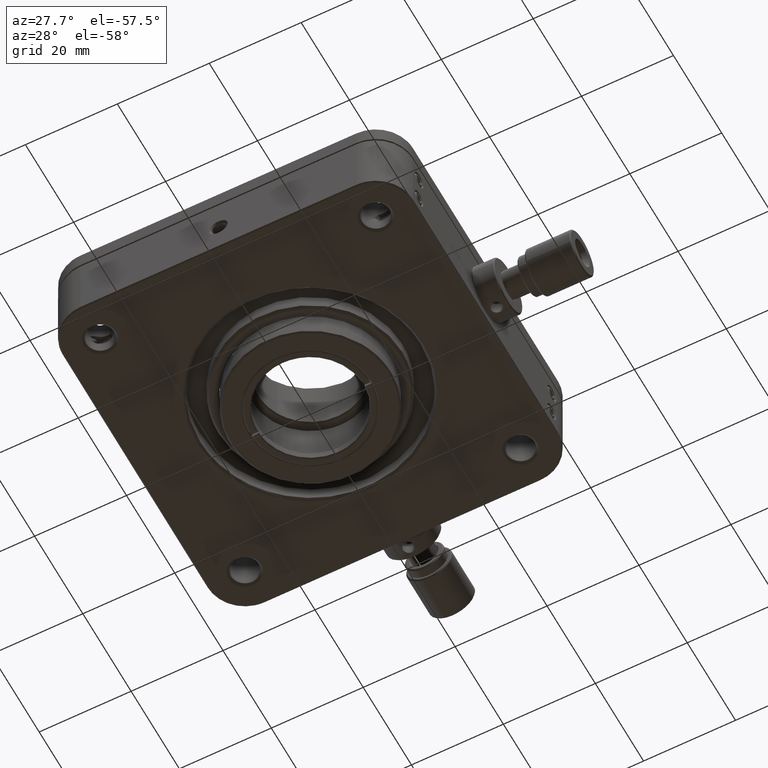
[diagram: clean part render]
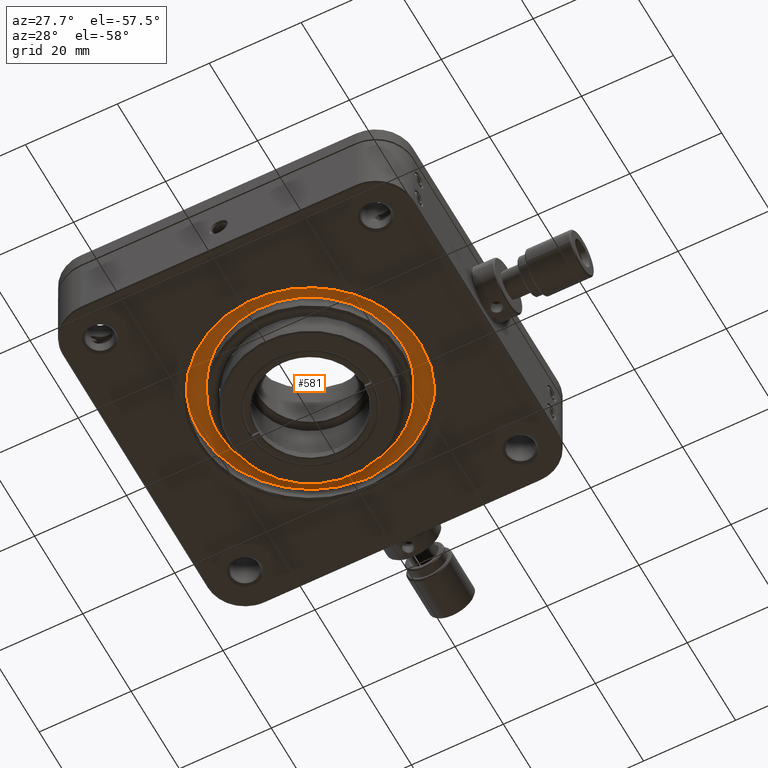
[diagram: same view with one face highlighted and labeled with its STEP entity id]
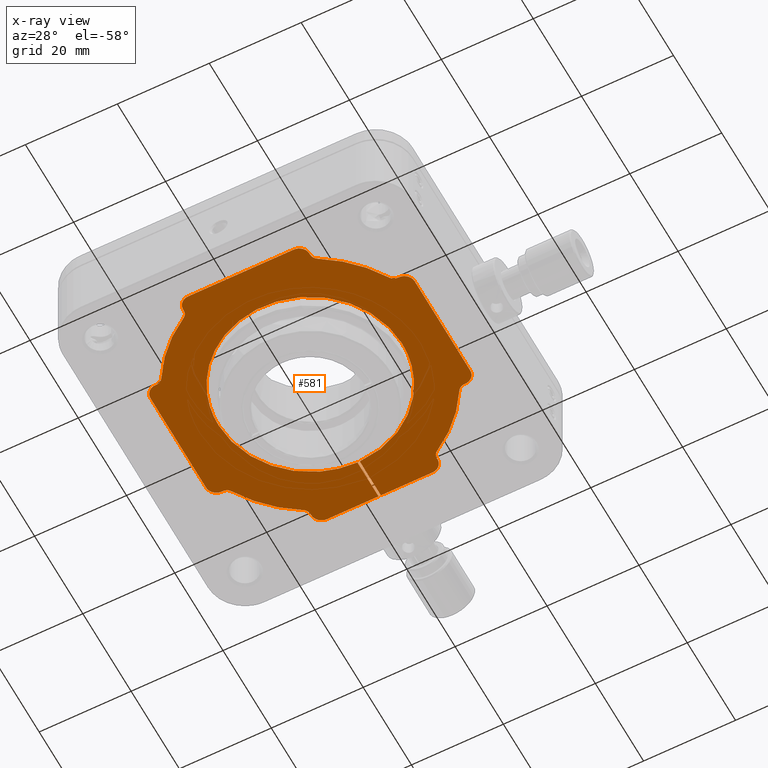
[diagram: x-ray of the same camera — body ghosted, the highlighted face saturated]
A machine part, auxiliary view. The second image highlights one B-rep face of the part: STEP entity #581.
The next image is the same camera in x-ray: the body ghosted, the highlighted face saturated — about 0% of this face is hidden behind the body in this view.
In plain terms, the highlighted face is a freeform B-spline surface patch.
Its self-contained STEP definition (entity closure, byte-faithful):
#7 = CARTESIAN_POINT ( 'NONE',  ( -28.75000000000060041, -28.75000000000060041, -4.000000000000860645 ) ) ;
#180 = ORIENTED_EDGE ( 'NONE', *, *, #21944, .T. ) ;
#194 = CARTESIAN_POINT ( 'NONE',  ( 26.49999999999955236, 13.74999999999939959, -4.000000000000849987 ) ) ;
#197 = CARTESIAN_POINT ( 'NONE',  ( -28.75000000000055422, -11.50000000000060041, -4.000000000000860645 ) ) ;
#228 = CARTESIAN_POINT ( 'NONE',  ( 28.74999999999946709, -11.79835122404499081, -4.000000000000849987 ) ) ;
#229 = CARTESIAN_POINT ( 'NONE',  ( -27.63667699514923015, 13.46454824691687691, -4.000000000000860645 ) ) ;
#243 = CARTESIAN_POINT ( 'NONE',  ( 24.76067929024245018, -14.61065573770579995, -4.000000000000849987 ) ) ;
#362 = CARTESIAN_POINT ( 'NONE',  ( -28.75000000000045119, 11.49999999999960032, -4.000000000000860645 ) ) ;
#438 = ORIENTED_EDGE ( 'NONE', *, *, #12961, .T. ) ;
#564 = CARTESIAN_POINT ( 'NONE',  ( -13.75000000000061995, -26.26785107312789691, -4.000000000000855316 ) ) ;
#581 = ADVANCED_FACE ( 'NONE', ( #24433 ), #23133, .T. ) ;
#653 = B_SPLINE_CURVE_WITH_KNOTS ( 'NONE', 1,
 ( #22613, #4243 ),
 .UNSPECIFIED., .F., .F.,
 ( 2, 2 ),
 ( 0.000000000000000000, 1.000000000000000000 ),
 .UNSPECIFIED. ) ;
#663 = VERTEX_POINT ( 'NONE', #12821 ) ;
#765 = CARTESIAN_POINT ( 'NONE',  ( -28.75000000000055422, -11.50000000000060041, -4.000000000000860645 ) ) ;
#782 = CARTESIAN_POINT ( 'NONE',  ( -14.61065573770536119, 24.76067929024245018, -4.000000000000855316 ) ) ;
#798 = CARTESIAN_POINT ( 'NONE',  ( 13.74999999999930012, -26.50000000000069988, -4.000000000000855316 ) ) ;
#845 = CARTESIAN_POINT ( 'NONE',  ( 19.99999999999949907, -6.409268245724490632E-13, -4.000000000000855316 ) ) ;
#858 = B_SPLINE_CURVE_WITH_KNOTS ( 'NONE', 3,
 ( #782, #15604, #23581, #25980, #5061, #7493 ),
 .UNSPECIFIED., .F., .F.,
 ( 4, 2, 4 ),
 ( 0.000000000000000000, 0.5000000000000000000, 1.000000000000000000 ),
 .UNSPECIFIED. ) ;
#882 = ORIENTED_EDGE ( 'NONE', *, *, #10324, .T. ) ;
#927 = CARTESIAN_POINT ( 'NONE',  ( 13.74999999999936406, -26.79835122402558056, -4.000000000000852651 ) ) ;
#1269 = EDGE_CURVE ( 'NONE', #15168, #26468, #26600, .T. ) ;
#1308 = CARTESIAN_POINT ( 'NONE',  ( 11.79838587619612689, -28.75000000000067146, -4.000000000000853539 ) ) ;
#1385 = CARTESIAN_POINT ( 'NONE',  ( -13.69289076819558204, 27.08540938439770329, -4.000000000000858869 ) ) ;
#1451 = CARTESIAN_POINT ( 'NONE',  ( -24.76067929024345204, 14.61065573770441972, -4.000000000000860645 ) ) ;
#1682 = CARTESIAN_POINT ( 'NONE',  ( -27.63666606134459869, -13.46456712803657219, -4.000000000000860645 ) ) ;
#1710 = CARTESIAN_POINT ( 'NONE',  ( -20.00000000000050093, -6.075829904497560840E-13, -4.000000000000860645 ) ) ;
#1807 = EDGE_CURVE ( 'NONE', #663, #12595, #24963, .T. ) ;
#1820 = EDGE_CURVE ( 'NONE', #15778, #17187, #3074, .T. ) ;
#1849 = CARTESIAN_POINT ( 'NONE',  ( 14.34854604577293635, -24.91534364453847061, -4.000000000000852651 ) ) ;
#1868 = CARTESIAN_POINT ( 'NONE',  ( -24.76067929024345204, -14.61065573770559922, -4.000000000000860645 ) ) ;
#1872 = CARTESIAN_POINT ( 'NONE',  ( -26.50000000000049738, -13.75000000000063949, -4.000000000000860645 ) ) ;
#1882 = CARTESIAN_POINT ( 'NONE',  ( -0.2500000000003649858, 19.99843743895939596, -3.995000000000860751 ) ) ;
#1975 = CARTESIAN_POINT ( 'NONE',  ( 21.18530712962409623, -19.47332981127734897, -4.000000000000851763 ) ) ;
#1982 = CARTESIAN_POINT ( 'NONE',  ( -15.65327483633734218, 24.14545591381145329, -4.000000000000858869 ) ) ;
#2045 = VERTEX_POINT ( 'NONE', #5502 ) ;
#2083 = CARTESIAN_POINT ( 'NONE',  ( -28.30194980099888724, -12.88004009008349371, -4.000000000000862421 ) ) ;
#2230 = CARTESIAN_POINT ( 'NONE',  ( -0.2500000000003649858, 19.99843743895939596, -3.995000000000860751 ) ) ;
#2245 = CARTESIAN_POINT ( 'NONE',  ( 26.79838587621540569, -13.75000000000094680, -4.000000000000849987 ) ) ;
#2261 = EDGE_CURVE ( 'NONE', #17187, #23928, #19464, .T. ) ;
#2346 = VERTEX_POINT ( 'NONE', #9043 ) ;
#2602 = CARTESIAN_POINT ( 'NONE',  ( 0.2499999999996395383, 19.99843743895939596, -3.995000000000860751 ) ) ;
#2811 = CARTESIAN_POINT ( 'NONE',  ( 14.34848765271527604, 24.91537810081585747, -4.000000000000852651 ) ) ;
#2902 = ORIENTED_EDGE ( 'NONE', *, *, #12081, .T. ) ;
#3050 = CARTESIAN_POINT ( 'NONE',  ( 24.14545591384855783, 15.65327483627361893, -4.000000000000851763 ) ) ;
#3074 = B_SPLINE_CURVE_WITH_KNOTS ( 'NONE', 1,
 ( #8231, #26479 ),
 .UNSPECIFIED., .F., .F.,
 ( 2, 2 ),
 ( 0.000000000000000000, 1.000000000000000000 ),
 .UNSPECIFIED. ) ;
#3083 = CARTESIAN_POINT ( 'NONE',  ( 13.69289076816966677, -27.08540938444552992, -4.000000000000852651 ) ) ;
#3145 = EDGE_CURVE ( 'NONE', #18271, #21194, #15538, .T. ) ;
#3151 = CARTESIAN_POINT ( 'NONE',  ( -12.88004009016474072, 28.30194980094611878, -4.000000000000857980 ) ) ;
#3271 = CARTESIAN_POINT ( 'NONE',  ( 26.79835122403954273, 13.74999999999946887, -4.000000000000850875 ) ) ;
#3303 = CARTESIAN_POINT ( 'NONE',  ( -13.82942682916676347, -25.66431361575172332, -4.000000000000858869 ) ) ;
#3421 = CARTESIAN_POINT ( 'NONE',  ( -12.63667699508180675, 28.46454824691663887, -4.000000000000857980 ) ) ;
#3496 = CARTESIAN_POINT ( 'NONE',  ( -25.96351153724407013, 13.74999999999951328, -4.000000000000861533 ) ) ;
#3539 = CARTESIAN_POINT ( 'NONE',  ( -26.26785107312769796, 13.74999999999959854, -4.000000000000860645 ) ) ;
#3540 = CARTESIAN_POINT ( 'NONE',  ( 11.49999999999960032, 28.74999999999934985, -4.000000000000855316 ) ) ;
#3578 = VERTEX_POINT ( 'NONE', #564 ) ;
#3589 = B_SPLINE_CURVE_WITH_KNOTS ( 'NONE', 3,
 ( #17093, #9349, #25581, #25319, #15584, #6952, #23561, #13559, #3050, #17221 ),
 .UNSPECIFIED., .F., .F.,
 ( 4, 2, 2, 2, 4 ),
 ( 0.000000000000000000, 0.2500000000000000000, 0.5000000000000000000, 0.7500000000000000000, 1.000000000000000000 ),
 .UNSPECIFIED. ) ;
#3606 = CARTESIAN_POINT ( 'NONE',  ( 19.99999999999939604, -40.00000000000066080, -4.000000000000856204 ) ) ;
#3673 = CARTESIAN_POINT ( 'NONE',  ( 13.30194980094712065, 27.88004009015004669, -4.000000000000852651 ) ) ;
#3723 = CARTESIAN_POINT ( 'NONE',  ( 25.96351153724789640, -13.75000000000094147, -4.000000000000850875 ) ) ;
#3744 = CARTESIAN_POINT ( 'NONE',  ( 14.61065573770359904, -24.76067929024414838, -4.000000000000849987 ) ) ;
#3838 = EDGE_CURVE ( 'NONE', #22388, #3578, #12605, .T. ) ;
#4010 = CARTESIAN_POINT ( 'NONE',  ( -18.56683072942890433, 21.98409991996716428, -4.000000000000858869 ) ) ;
#4045 = ORIENTED_EDGE ( 'NONE', *, *, #18301, .T. ) ;
#4098 = CARTESIAN_POINT ( 'NONE',  ( 26.26785107312669609, -13.75000000000100009, -4.000000000000849987 ) ) ;
#4132 = CARTESIAN_POINT ( 'NONE',  ( 27.63667699515278287, -13.46454824691826246, -4.000000000000849987 ) ) ;
#4227 = CARTESIAN_POINT ( 'NONE',  ( -12.63666606123501701, -28.46456712810415368, -4.000000000000857980 ) ) ;
#4243 = CARTESIAN_POINT ( 'NONE',  ( 26.26785107312669609, -13.75000000000100009, -4.000000000000849987 ) ) ;
#4315 = ORIENTED_EDGE ( 'NONE', *, *, #7223, .T. ) ;
#4452 = ORIENTED_EDGE ( 'NONE', *, *, #23238, .T. ) ;
#4529 = CARTESIAN_POINT ( 'NONE',  ( 28.74999999999944933, -11.50000000000099831, -4.000000000000849987 ) ) ;
#4669 = CARTESIAN_POINT ( 'NONE',  ( -18.56682008126790961, -21.98411349803021508, -4.000000000000857980 ) ) ;
#4943 = CARTESIAN_POINT ( 'NONE',  ( 12.08539845046990635, -28.69290964938413069, -4.000000000000854428 ) ) ;
#4973 = B_SPLINE_CURVE_WITH_KNOTS ( 'NONE', 3,
 ( #22069, #3723, #5174, #7476, #26246, #7747 ),
 .UNSPECIFIED., .F., .F.,
 ( 4, 2, 4 ),
 ( 0.000000000000000000, 0.5000000000000000000, 1.000000000000000000 ),
 .UNSPECIFIED. ) ;
#5000 = VERTEX_POINT ( 'NONE', #9699 ) ;
#5061 = CARTESIAN_POINT ( 'NONE',  ( -13.75000000000051337, 25.96344373611240641, -4.000000000000857980 ) ) ;
#5174 = CARTESIAN_POINT ( 'NONE',  ( 25.66431361570446512, -13.82942682920323385, -4.000000000000851763 ) ) ;
#5263 = CARTESIAN_POINT ( 'NONE',  ( 26.49999999999955236, 13.74999999999939959, -4.000000000000849987 ) ) ;
#5338 = CARTESIAN_POINT ( 'NONE',  ( 13.74999999999959854, 25.96351153731626127, -4.000000000000852651 ) ) ;
#5502 = CARTESIAN_POINT ( 'NONE',  ( 0.2499999999996070366, 28.75499999999940215, -3.995000000000860751 ) ) ;
#5546 = B_SPLINE_CURVE_WITH_KNOTS ( 'NONE', 3,
 ( #9517, #927, #3083, #11300, #17516, #19548, #17388, #4943, #1308, #23980 ),
 .UNSPECIFIED., .F., .F.,
 ( 4, 2, 2, 2, 4 ),
 ( 0.000000000000000000, 0.2500000000000000000, 0.5000000000000000000, 0.7500000000000000000, 1.000000000000000000 ),
 .UNSPECIFIED. ) ;
#5567 = VERTEX_POINT ( 'NONE', #12318 ) ;
#5619 = CARTESIAN_POINT ( 'NONE',  ( -25.66431361580286463, 13.82942682912742249, -4.000000000000859757 ) ) ;
#5628 = CARTESIAN_POINT ( 'NONE',  ( -14.61065573770540027, -24.76067929024365100, -4.000000000000855316 ) ) ;
#5702 = CARTESIAN_POINT ( 'NONE',  ( -13.75000000000060041, -26.50000000000064659, -4.000000000000855316 ) ) ;
#5737 = CARTESIAN_POINT ( 'NONE',  ( 19.99999999999949907, -6.409268245724490632E-13, -4.000000000000855316 ) ) ;
#5981 = ORIENTED_EDGE ( 'NONE', *, *, #11928, .T. ) ;
#6145 = CARTESIAN_POINT ( 'NONE',  ( 28.30194042522108333, -12.88003071434452451, -4.000000000000849987 ) ) ;
#6177 = B_SPLINE_CURVE_WITH_KNOTS ( 'NONE', 3,
 ( #3744, #1849, #16024, #12232, #10056, #20491 ),
 .UNSPECIFIED., .F., .F.,
 ( 4, 2, 4 ),
 ( 0.000000000000000000, 0.5000000000000000000, 1.000000000000000000 ),
 .UNSPECIFIED. ) ;
#6264 = VERTEX_POINT ( 'NONE', #6705 ) ;
#6300 = B_SPLINE_CURVE_WITH_KNOTS ( 'NONE', 1,
 ( #9860, #7713 ),
 .UNSPECIFIED., .F., .F.,
 ( 2, 2 ),
 ( 0.000000000000000000, 1.000000000000000000 ),
 .UNSPECIFIED. ) ;
#6492 = CARTESIAN_POINT ( 'NONE',  ( -13.75000000000040146, 26.49999999999940314, -4.000000000000855316 ) ) ;
#6497 = CARTESIAN_POINT ( 'NONE',  ( 0.2499999999996395106, 19.99843743895939596, -3.995000000000860751 ) ) ;
#6546 = CARTESIAN_POINT ( 'NONE',  ( 16.65303365468191998, -23.46709536430957499, -4.000000000000850875 ) ) ;
#6566 = CARTESIAN_POINT ( 'NONE',  ( -21.98409991976613043, -18.56683072977148896, -4.000000000000859757 ) ) ;
#6606 = CARTESIAN_POINT ( 'NONE',  ( -28.75000000000045119, 11.49999999999960032, -4.000000000000860645 ) ) ;
#6639 = CARTESIAN_POINT ( 'NONE',  ( 19.99999999999952749, 9.906538416462177921, -4.000000000000853539 ) ) ;
#6690 = CARTESIAN_POINT ( 'NONE',  ( -24.76067929024345204, 14.61065573770441972, -4.000000000000860645 ) ) ;
#6705 = CARTESIAN_POINT ( 'NONE',  ( -11.50000000000060041, -28.75000000000065015, -4.000000000000855316 ) ) ;
#6759 = ORIENTED_EDGE ( 'NONE', *, *, #21461, .T. ) ;
#6952 = CARTESIAN_POINT ( 'NONE',  ( 21.18531010669432035, 19.47333278901086828, -4.000000000000852651 ) ) ;
#6964 = CARTESIAN_POINT ( 'NONE',  ( 26.49999999999949907, -13.75000000000100009, -4.000000000000849987 ) ) ;
#7223 = EDGE_CURVE ( 'NONE', #5567, #7453, #20250, .T. ) ;
#7410 = CARTESIAN_POINT ( 'NONE',  ( 28.74999999999954881, 11.49999999999940137, -4.000000000000849987 ) ) ;
#7453 = VERTEX_POINT ( 'NONE', #13885 ) ;
#7476 = CARTESIAN_POINT ( 'NONE',  ( 25.13579206766744889, -14.13121387679718843, -4.000000000000850875 ) ) ;
#7493 = CARTESIAN_POINT ( 'NONE',  ( -13.75000000000040146, 26.26785107312684531, -4.000000000000855316 ) ) ;
#7713 = CARTESIAN_POINT ( 'NONE',  ( -11.50000000000060041, -28.75000000000065015, -4.000000000000855316 ) ) ;
#7716 = CARTESIAN_POINT ( 'NONE',  ( -11.79838587628822033, 28.74999999999943512, -4.000000000000857092 ) ) ;
#7731 = CARTESIAN_POINT ( 'NONE',  ( -12.88003071436715885, -28.30194042518969155, -4.000000000000858869 ) ) ;
#7747 = CARTESIAN_POINT ( 'NONE',  ( 24.76067929024245018, -14.61065573770579995, -4.000000000000849987 ) ) ;
#7778 = CARTESIAN_POINT ( 'NONE',  ( -21.98411349833046913, 18.56682008088914060, -4.000000000000859757 ) ) ;
#7918 = CARTESIAN_POINT ( 'NONE',  ( -24.91537810080654225, 14.34848765273267368, -4.000000000000860645 ) ) ;
#7984 = ORIENTED_EDGE ( 'NONE', *, *, #13276, .T. ) ;
#8065 = ORIENTED_EDGE ( 'NONE', *, *, #22443, .T. ) ;
#8148 = VERTEX_POINT ( 'NONE', #17972 ) ;
#8231 = CARTESIAN_POINT ( 'NONE',  ( -26.26785107312789691, -13.75000000000061995, -4.000000000000860645 ) ) ;
#8296 = CARTESIAN_POINT ( 'NONE',  ( 24.14547292112630927, -15.65324601404013904, -4.000000000000850875 ) ) ;
#8406 = CARTESIAN_POINT ( 'NONE',  ( 11.49999999999923972, -28.75000000000065015, -4.000000000000855316 ) ) ;
#8681 = CARTESIAN_POINT ( 'NONE',  ( 15.65327483661080343, -24.14545591365081734, -4.000000000000852651 ) ) ;
#8899 = VERTEX_POINT ( 'NONE', #26203 ) ;
#8901 = EDGE_CURVE ( 'NONE', #20927, #6264, #6300, .T. ) ;
#8925 = VERTEX_POINT ( 'NONE', #14332 ) ;
#8963 = CARTESIAN_POINT ( 'NONE',  ( -24.76067929024345204, -14.61065573770559922, -4.000000000000860645 ) ) ;
#8991 = ORIENTED_EDGE ( 'NONE', *, *, #13115, .T. ) ;
#9043 = CARTESIAN_POINT ( 'NONE',  ( 24.76067929024254965, 14.61065573770435932, -4.000000000000849987 ) ) ;
#9349 = CARTESIAN_POINT ( 'NONE',  ( 15.65324601350579314, 24.14547292144078838, -4.000000000000852651 ) ) ;
#9409 = B_SPLINE_CURVE_WITH_KNOTS ( 'NONE', 3,
 ( #11366, #21902, #1385, #13934, #24183, #3151, #3421, #19616, #7716, #21770 ),
 .UNSPECIFIED., .F., .F.,
 ( 4, 2, 2, 2, 4 ),
 ( 0.000000000000000000, 0.2500000000000000000, 0.5000000000000000000, 0.7500000000000000000, 1.000000000000000000 ),
 .UNSPECIFIED. ) ;
#9441 = CARTESIAN_POINT ( 'NONE',  ( 12.63666606129106107, 28.46456712807092870, -4.000000000000852651 ) ) ;
#9444 = CARTESIAN_POINT ( 'NONE',  ( 27.63666606125695679, 13.46456712809906797, -4.000000000000849987 ) ) ;
#9517 = CARTESIAN_POINT ( 'NONE',  ( 13.74999999999930012, -26.50000000000069988, -4.000000000000855316 ) ) ;
#9609 = CARTESIAN_POINT ( 'NONE',  ( -13.75000000000052047, -25.96351153728578609, -4.000000000000858869 ) ) ;
#9635 = VERTEX_POINT ( 'NONE', #6606 ) ;
#9641 = CARTESIAN_POINT ( 'NONE',  ( 26.26785107312694834, 13.74999999999939959, -4.000000000000849987 ) ) ;
#9699 = CARTESIAN_POINT ( 'NONE',  ( 28.74999999999944933, -11.50000000000099831, -4.000000000000849987 ) ) ;
#9745 = CARTESIAN_POINT ( 'NONE',  ( -13.75000000000061995, -26.26785107312789691, -4.000000000000855316 ) ) ;
#9846 = CARTESIAN_POINT ( 'NONE',  ( 12.88003071439136171, 28.30194042518830244, -4.000000000000853539 ) ) ;
#9860 = CARTESIAN_POINT ( 'NONE',  ( 11.49999999999923972, -28.75000000000065015, -4.000000000000855316 ) ) ;
#9921 = CARTESIAN_POINT ( 'NONE',  ( -11.50000000000039968, 28.74999999999944933, -4.000000000000855316 ) ) ;
#10021 = CARTESIAN_POINT ( 'NONE',  ( -11.79835122405408576, -28.75000000000062528, -4.000000000000857092 ) ) ;
#10035 = CARTESIAN_POINT ( 'NONE',  ( 14.61065573770446058, 24.76067929024245018, -4.000000000000849987 ) ) ;
#10056 = CARTESIAN_POINT ( 'NONE',  ( 13.74999999999781686, -25.96344373616340206, -4.000000000000852651 ) ) ;
#10075 = CARTESIAN_POINT ( 'NONE',  ( -26.26785107312789691, -13.75000000000061995, -4.000000000000860645 ) ) ;
#10124 = CARTESIAN_POINT ( 'NONE',  ( 28.74999999999954881, 11.49999999999940137, -4.000000000000849987 ) ) ;
#10187 = CARTESIAN_POINT ( 'NONE',  ( 19.47333278860116579, -21.18531010695074812, -4.000000000000850875 ) ) ;
#10211 = CARTESIAN_POINT ( 'NONE',  ( -24.91534364451366557, -14.34854604581583359, -4.000000000000858869 ) ) ;
#10256 = VERTEX_POINT ( 'NONE', #4098 ) ;
#10268 = CARTESIAN_POINT ( 'NONE',  ( -13.75000000000040146, 26.26785107312684531, -4.000000000000855316 ) ) ;
#10324 = EDGE_CURVE ( 'NONE', #6264, #22388, #13641, .T. ) ;
#10370 = ORIENTED_EDGE ( 'NONE', *, *, #16772, .F. ) ;
#10390 = ORIENTED_EDGE ( 'NONE', *, *, #18367, .T. ) ;
#10422 = CARTESIAN_POINT ( 'NONE',  ( -13.75000000000052758, -26.79838587623948598, -4.000000000000858869 ) ) ;
#10432 = CARTESIAN_POINT ( 'NONE',  ( -27.88003071434149405, -13.30194042525728726, -4.000000000000860645 ) ) ;
#10458 = CARTESIAN_POINT ( 'NONE',  ( -0.2500000000003949618, 28.75499999999940215, -3.995000000000855422 ) ) ;
#10542 = B_SPLINE_CURVE_WITH_KNOTS ( 'NONE', 3,
 ( #1868, #10211, #12118, #16042, #18474, #10075 ),
 .UNSPECIFIED., .F., .F.,
 ( 4, 2, 4 ),
 ( 0.000000000000000000, 0.5000000000000000000, 1.000000000000000000 ),
 .UNSPECIFIED. ) ;
#10609 = EDGE_CURVE ( 'NONE', #8899, #17476, #25267, .T. ) ;
#10660 = CARTESIAN_POINT ( 'NONE',  ( 25.66430499274934363, 13.82941172882243741, -4.000000000000851763 ) ) ;
#10893 = ORIENTED_EDGE ( 'NONE', *, *, #24933, .T. ) ;
#11029 = EDGE_CURVE ( 'NONE', #8148, #663, #11676, .T. ) ;
#11057 = EDGE_CURVE ( 'NONE', #11821, #18486, #24782, .T. ) ;
#11191 = B_SPLINE_CURVE_WITH_KNOTS ( 'NONE', 1,
 ( #26635, #16110 ),
 .UNSPECIFIED., .F., .F.,
 ( 2, 2 ),
 ( 0.000000000000000000, 1.000000000000000000 ),
 .UNSPECIFIED. ) ;
#11258 = ORIENTED_EDGE ( 'NONE', *, *, #22284, .T. ) ;
#11300 = CARTESIAN_POINT ( 'NONE',  ( 13.46456712812984158, -27.63666606119867808, -4.000000000000851763 ) ) ;
#11351 = CARTESIAN_POINT ( 'NONE',  ( 13.46454824691686802, 27.63667699506904540, -4.000000000000853539 ) ) ;
#11366 = CARTESIAN_POINT ( 'NONE',  ( -13.75000000000040146, 26.49999999999940314, -4.000000000000855316 ) ) ;
#11487 = CARTESIAN_POINT ( 'NONE',  ( 27.08540938438489576, 13.69289076820068907, -4.000000000000850875 ) ) ;
#11545 = ORIENTED_EDGE ( 'NONE', *, *, #3145, .T. ) ;
#11665 = EDGE_CURVE ( 'NONE', #18486, #15460, #19425, .T. ) ;
#11676 = B_SPLINE_CURVE_WITH_KNOTS ( 'NONE', 1,
 ( #9641, #194 ),
 .UNSPECIFIED., .F., .F.,
 ( 2, 2 ),
 ( 0.000000000000000000, 1.000000000000000000 ),
 .UNSPECIFIED. ) ;
#11695 = CARTESIAN_POINT ( 'NONE',  ( -14.61065573770536119, 24.76067929024245018, -4.000000000000855316 ) ) ;
#11821 = VERTEX_POINT ( 'NONE', #14562 ) ;
#11832 = CARTESIAN_POINT ( 'NONE',  ( 28.74999999999944933, -11.50000000000099831, -4.000000000000849987 ) ) ;
#11906 = VERTEX_POINT ( 'NONE', #15350 ) ;
#11928 = EDGE_CURVE ( 'NONE', #26468, #23931, #6177, .T. ) ;
#12027 = ORIENTED_EDGE ( 'NONE', *, *, #12969, .T. ) ;
#12081 = EDGE_CURVE ( 'NONE', #9635, #8899, #14891, .T. ) ;
#12102 = CARTESIAN_POINT ( 'NONE',  ( -24.76067929024345204, 14.61065573770441972, -4.000000000000860645 ) ) ;
#12118 = CARTESIAN_POINT ( 'NONE',  ( -25.13580069062092903, -14.13122897717934912, -4.000000000000859757 ) ) ;
#12135 = CARTESIAN_POINT ( 'NONE',  ( 0.2499999999996395106, 19.99843743895939596, -3.995000000000860751 ) ) ;
#12232 = CARTESIAN_POINT ( 'NONE',  ( 13.82941172880262393, -25.66430499281961275, -4.000000000000850875 ) ) ;
#12318 = CARTESIAN_POINT ( 'NONE',  ( 11.49999999999960032, 28.74999999999934985, -4.000000000000855316 ) ) ;
#12331 = B_SPLINE_CURVE_WITH_KNOTS ( 'NONE', 3,
 ( #15898, #3496, #5619, #19826, #7918, #1451 ),
 .UNSPECIFIED., .F., .F.,
 ( 4, 2, 4 ),
 ( 0.000000000000000000, 0.5000000000000000000, 1.000000000000000000 ),
 .UNSPECIFIED. ) ;
#12402 = ORIENTED_EDGE ( 'NONE', *, *, #11029, .T. ) ;
#12454 = CARTESIAN_POINT ( 'NONE',  ( -13.46454824691783614, -27.63667699513094078, -4.000000000000857980 ) ) ;
#12491 = CARTESIAN_POINT ( 'NONE',  ( -28.75000000000044764, 11.79835122401416214, -4.000000000000859757 ) ) ;
#12538 = B_SPLINE_CURVE_WITH_KNOTS ( 'NONE', 1,
 ( #10268, #6492 ),
 .UNSPECIFIED., .F., .F.,
 ( 2, 2 ),
 ( 0.000000000000000000, 1.000000000000000000 ),
 .UNSPECIFIED. ) ;
#12595 = VERTEX_POINT ( 'NONE', #7410 ) ;
#12605 = B_SPLINE_CURVE_WITH_KNOTS ( 'NONE', 1,
 ( #20579, #26211 ),
 .UNSPECIFIED., .F., .F.,
 ( 2, 2 ),
 ( 0.000000000000000000, 1.000000000000000000 ),
 .UNSPECIFIED. ) ;
#12702 = CARTESIAN_POINT ( 'NONE',  ( 25.96344373616124912, 13.74999999999952749, -4.000000000000850875 ) ) ;
#12772 = CARTESIAN_POINT ( 'NONE',  ( 27.08539845048922245, -13.69290964938441135, -4.000000000000849987 ) ) ;
#12821 = CARTESIAN_POINT ( 'NONE',  ( 26.49999999999955236, 13.74999999999939959, -4.000000000000849987 ) ) ;
#12914 = CARTESIAN_POINT ( 'NONE',  ( -28.75000000000045119, 11.49999999999960032, -4.000000000000860645 ) ) ;
#12961 = EDGE_CURVE ( 'NONE', #24408, #21523, #21384, .T. ) ;
#12969 = EDGE_CURVE ( 'NONE', #8925, #20927, #5546, .T. ) ;
#13085 = ORIENTED_EDGE ( 'NONE', *, *, #21758, .T. ) ;
#13115 = EDGE_CURVE ( 'NONE', #12595, #5000, #22675, .T. ) ;
#13276 = EDGE_CURVE ( 'NONE', #18349, #20522, #9409, .T. ) ;
#13518 = B_SPLINE_CURVE_WITH_KNOTS ( 'NONE', 1,
 ( #6497, #14737 ),
 .UNSPECIFIED., .F., .F.,
 ( 2, 2 ),
 ( 0.000000000000000000, 1.000000000000000000 ),
 .UNSPECIFIED. ) ;
#13542 = CARTESIAN_POINT ( 'NONE',  ( -0.2500000000003949618, 28.75499999999940215, -3.995000000000855422 ) ) ;
#13559 = CARTESIAN_POINT ( 'NONE',  ( 23.46709536450730837, 16.65303365434472838, -4.000000000000850875 ) ) ;
#13568 = ORIENTED_EDGE ( 'NONE', *, *, #17460, .T. ) ;
#13641 = B_SPLINE_CURVE_WITH_KNOTS ( 'NONE', 3,
 ( #24615, #10021, #22325, #4227, #7731, #26226, #12454, #18275, #10422, #5702 ),
 .UNSPECIFIED., .F., .F.,
 ( 4, 2, 2, 2, 4 ),
 ( 0.000000000000000000, 0.2500000000000000000, 0.5000000000000000000, 0.7500000000000000000, 1.000000000000000000 ),
 .UNSPECIFIED. ) ;
#13646 = CARTESIAN_POINT ( 'NONE',  ( 13.69290964938301336, 27.08539845057274675, -4.000000000000853539 ) ) ;
#13684 = CARTESIAN_POINT ( 'NONE',  ( -14.13121387683287189, -25.13579206762255325, -4.000000000000857980 ) ) ;
#13725 = CARTESIAN_POINT ( 'NONE',  ( -24.14547292134315981, 15.65324601367293411, -4.000000000000857980 ) ) ;
#13856 = CARTESIAN_POINT ( 'NONE',  ( -23.46708178610886364, 16.65304430294635196, -4.000000000000859757 ) ) ;
#13883 = B_SPLINE_CURVE_WITH_KNOTS ( 'NONE', 1,
 ( #19179, #23633 ),
 .UNSPECIFIED., .F., .F.,
 ( 2, 2 ),
 ( 0.000000000000000000, 1.000000000000000000 ),
 .UNSPECIFIED. ) ;
#13885 = CARTESIAN_POINT ( 'NONE',  ( 13.74999999999959854, 26.49999999999934985, -4.000000000000855316 ) ) ;
#13934 = CARTESIAN_POINT ( 'NONE',  ( -13.46456712810615208, 27.63666606124392189, -4.000000000000857980 ) ) ;
#14132 = CARTESIAN_POINT ( 'NONE',  ( -16.65303365440844630, 23.46709536447021094, -4.000000000000858869 ) ) ;
#14332 = CARTESIAN_POINT ( 'NONE',  ( 13.74999999999930012, -26.50000000000069988, -4.000000000000855316 ) ) ;
#14392 = CARTESIAN_POINT ( 'NONE',  ( 28.69289076819684681, -12.08540938439980472, -4.000000000000849987 ) ) ;
#14511 = B_SPLINE_CURVE_WITH_KNOTS ( 'NONE', 1,
 ( #23205, #798 ),
 .UNSPECIFIED., .F., .F.,
 ( 2, 2 ),
 ( 0.000000000000000000, 1.000000000000000000 ),
 .UNSPECIFIED. ) ;
#14562 = CARTESIAN_POINT ( 'NONE',  ( 19.99999999999949907, -6.409268245724490632E-13, -4.000000000000855316 ) ) ;
#14713 = EDGE_CURVE ( 'NONE', #16492, #11906, #25471, .T. ) ;
#14737 = CARTESIAN_POINT ( 'NONE',  ( 0.2499999999996070366, 28.75499999999940215, -3.995000000000860751 ) ) ;
#14767 = EDGE_LOOP ( 'NONE', ( #22320, #10370, #25690, #17153, #4315, #4452, #438, #6759, #18439, #12402, #21091, #8991, #26403, #11258, #10390, #19476, #5981, #180, #12027, #20743, #882, #21621, #10893, #23019, #22178, #16951, #17985, #4045, #2902, #15640, #17262, #11545, #13568, #8065, #7984, #13085, #22703, #15093 ) ) ;
#14787 = CARTESIAN_POINT ( 'NONE',  ( -26.50000000000049738, 13.74999999999961808, -4.000000000000860645 ) ) ;
#14812 = B_SPLINE_CURVE_WITH_KNOTS ( 'NONE', 1,
 ( #16670, #24766 ),
 .UNSPECIFIED., .F., .F.,
 ( 2, 2 ),
 ( 0.000000000000000000, 1.000000000000000000 ),
 .UNSPECIFIED. ) ;
#14855 = CARTESIAN_POINT ( 'NONE',  ( 24.76067929024254965, 14.61065573770435932, -4.000000000000849987 ) ) ;
#14891 = B_SPLINE_CURVE_WITH_KNOTS ( 'NONE', 3,
 ( #362, #12491, #18720, #19108, #16687, #20755, #229, #24915, #25046, #14787 ),
 .UNSPECIFIED., .F., .F.,
 ( 4, 2, 2, 2, 4 ),
 ( 0.000000000000000000, 0.2500000000000000000, 0.5000000000000000000, 0.7500000000000000000, 1.000000000000000000 ),
 .UNSPECIFIED. ) ;
#15090 = EDGE_CURVE ( 'NONE', #26138, #2045, #13518, .T. ) ;
#15093 = ORIENTED_EDGE ( 'NONE', *, *, #11665, .F. ) ;
#15119 = CARTESIAN_POINT ( 'NONE',  ( -13.75000000000040146, 26.26785107312684531, -4.000000000000855316 ) ) ;
#15168 = VERTEX_POINT ( 'NONE', #243 ) ;
#15226 = CARTESIAN_POINT ( 'NONE',  ( 14.61065573770446058, 24.76067929024245018, -4.000000000000849987 ) ) ;
#15263 = VERTEX_POINT ( 'NONE', #6964 ) ;
#15350 = CARTESIAN_POINT ( 'NONE',  ( -24.76067929024345204, -14.61065573770559922, -4.000000000000860645 ) ) ;
#15361 = B_SPLINE_CURVE_WITH_KNOTS ( 'NONE', 1,
 ( #13542, #25945 ),
 .UNSPECIFIED., .F., .F.,
 ( 2, 2 ),
 ( 0.000000000000000000, 1.000000000000000000 ),
 .UNSPECIFIED. ) ;
#15453 = EDGE_CURVE ( 'NONE', #2045, #5567, #14812, .T. ) ;
#15454 = CARTESIAN_POINT ( 'NONE',  ( -13.75000000000040146, 26.49999999999940314, -4.000000000000855316 ) ) ;
#15460 = VERTEX_POINT ( 'NONE', #2230 ) ;
#15538 = B_SPLINE_CURVE_WITH_KNOTS ( 'NONE', 3,
 ( #12102, #13725, #13856, #7778, #16028, #21965, #4010, #14132, #1982, #11695 ),
 .UNSPECIFIED., .F., .F.,
 ( 4, 2, 2, 2, 4 ),
 ( 0.000000000000000000, 0.2500000000000000000, 0.5000000000000000000, 0.7500000000000000000, 1.000000000000000000 ),
 .UNSPECIFIED. ) ;
#15584 = CARTESIAN_POINT ( 'NONE',  ( 19.47332981153121523, 21.18530712921445414, -4.000000000000851763 ) ) ;
#15604 = CARTESIAN_POINT ( 'NONE',  ( -14.34854604579240878, 24.91534364452636652, -4.000000000000858869 ) ) ;
#15640 = ORIENTED_EDGE ( 'NONE', *, *, #10609, .T. ) ;
#15778 = VERTEX_POINT ( 'NONE', #21651 ) ;
#15872 =( BOUNDED_CURVE ( )  B_SPLINE_CURVE ( 3, ( #2602, #25006, #6639, #845 ),
 .UNSPECIFIED., .F., .F. ) 
 B_SPLINE_CURVE_WITH_KNOTS ( ( 4, 4 ),
 ( 0.000000000000000000, 1.000000000000000000 ),
 .UNSPECIFIED. ) 
 CURVE ( )  GEOMETRIC_REPRESENTATION_ITEM ( )  RATIONAL_B_SPLINE_CURVE ( ( 0.5000195327760277308, 0.5020899256452417969, 0.6687500813865658866, 1.000000000000000000 ) ) 
 REPRESENTATION_ITEM ( '' )  );
#15881 = CARTESIAN_POINT ( 'NONE',  ( -20.00000000000059686, -40.00000000000059686, -4.000000000000857980 ) ) ;
#15898 = CARTESIAN_POINT ( 'NONE',  ( -26.26785107312769796, 13.74999999999959854, -4.000000000000860645 ) ) ;
#15921 = CARTESIAN_POINT ( 'NONE',  ( -20.00000000000050093, -6.075829904497560840E-13, -4.000000000000860645 ) ) ;
#16024 = CARTESIAN_POINT ( 'NONE',  ( 14.13122897719165749, -25.13580069055671729, -4.000000000000852651 ) ) ;
#16028 = CARTESIAN_POINT ( 'NONE',  ( -21.18530712916390613, 19.47332981158266563, -4.000000000000858869 ) ) ;
#16042 = CARTESIAN_POINT ( 'NONE',  ( -25.66430499275310595, -13.82941172882050296, -4.000000000000859757 ) ) ;
#16110 = CARTESIAN_POINT ( 'NONE',  ( 13.74999999999966072, 26.26785107312669609, -4.000000000000855316 ) ) ;
#16261 = CARTESIAN_POINT ( 'NONE',  ( -26.79835122410771575, -13.75000000000065548, -4.000000000000859757 ) ) ;
#16427 = EDGE_CURVE ( 'NONE', #11906, #15778, #10542, .T. ) ;
#16467 = CARTESIAN_POINT ( 'NONE',  ( 28.74999999999959854, 28.74999999999930012, -4.000000000000849987 ) ) ;
#16492 = VERTEX_POINT ( 'NONE', #5628 ) ;
#16599 = B_SPLINE_CURVE_WITH_KNOTS ( 'NONE', 3,
 ( #9745, #9609, #3303, #13684, #23805, #26229 ),
 .UNSPECIFIED., .F., .F.,
 ( 4, 2, 4 ),
 ( 0.000000000000000000, 0.5000000000000000000, 1.000000000000000000 ),
 .UNSPECIFIED. ) ;
#16670 = CARTESIAN_POINT ( 'NONE',  ( 0.2499999999996070366, 28.75499999999940215, -3.995000000000860751 ) ) ;
#16687 = CARTESIAN_POINT ( 'NONE',  ( -28.30194042516201591, 12.88003071436996905, -4.000000000000860645 ) ) ;
#16701 = CARTESIAN_POINT ( 'NONE',  ( -19.47332981103652827, -21.18530712978855135, -4.000000000000858869 ) ) ;
#16772 = EDGE_CURVE ( 'NONE', #26138, #11821, #15872, .T. ) ;
#16840 = CARTESIAN_POINT ( 'NONE',  ( -16.65304430256958312, -23.46708178640951559, -4.000000000000859757 ) ) ;
#16951 = ORIENTED_EDGE ( 'NONE', *, *, #1820, .T. ) ;
#17093 = CARTESIAN_POINT ( 'NONE',  ( 14.61065573770446058, 24.76067929024245018, -4.000000000000849987 ) ) ;
#17153 = ORIENTED_EDGE ( 'NONE', *, *, #15453, .T. ) ;
#17187 = VERTEX_POINT ( 'NONE', #1872 ) ;
#17221 = CARTESIAN_POINT ( 'NONE',  ( 24.76067929024254965, 14.61065573770435932, -4.000000000000849987 ) ) ;
#17252 = CARTESIAN_POINT ( 'NONE',  ( -14.61065573770536119, 24.76067929024245018, -4.000000000000855316 ) ) ;
#17262 = ORIENTED_EDGE ( 'NONE', *, *, #19827, .T. ) ;
#17388 = CARTESIAN_POINT ( 'NONE',  ( 12.63667699517157139, -28.46454824691797469, -4.000000000000853539 ) ) ;
#17460 = EDGE_CURVE ( 'NONE', #21194, #17895, #858, .T. ) ;
#17476 = VERTEX_POINT ( 'NONE', #26407 ) ;
#17516 = CARTESIAN_POINT ( 'NONE',  ( 13.30194042520181696, -27.88003071434435043, -4.000000000000853539 ) ) ;
#17701 = CARTESIAN_POINT ( 'NONE',  ( 27.88003071437557878, 13.30194042519806530, -4.000000000000849987 ) ) ;
#17757 = EDGE_CURVE ( 'NONE', #2346, #8148, #23027, .T. ) ;
#17775 = CARTESIAN_POINT ( 'NONE',  ( 13.74999999999966072, 26.26785107312669609, -4.000000000000855316 ) ) ;
#17895 = VERTEX_POINT ( 'NONE', #15119 ) ;
#17966 = CARTESIAN_POINT ( 'NONE',  ( 11.79835122407351733, 28.74999999999936406, -4.000000000000853539 ) ) ;
#17972 = CARTESIAN_POINT ( 'NONE',  ( 26.26785107312694834, 13.74999999999939959, -4.000000000000849987 ) ) ;
#17985 = ORIENTED_EDGE ( 'NONE', *, *, #2261, .T. ) ;
#18178 = CARTESIAN_POINT ( 'NONE',  ( 21.98411349749703447, -18.56682008187745936, -4.000000000000849987 ) ) ;
#18246 = CARTESIAN_POINT ( 'NONE',  ( 28.74999999999954170, 11.79838587627065749, -4.000000000000849987 ) ) ;
#18271 = VERTEX_POINT ( 'NONE', #6690 ) ;
#18275 = CARTESIAN_POINT ( 'NONE',  ( -13.69290964938398503, -27.08539845051330275, -4.000000000000857092 ) ) ;
#18301 = EDGE_CURVE ( 'NONE', #23928, #9635, #25916, .T. ) ;
#18349 = VERTEX_POINT ( 'NONE', #15454 ) ;
#18367 = EDGE_CURVE ( 'NONE', #10256, #15168, #4973, .T. ) ;
#18439 = ORIENTED_EDGE ( 'NONE', *, *, #17757, .T. ) ;
#18474 = CARTESIAN_POINT ( 'NONE',  ( -25.96344373617073487, -13.75000000000065015, -4.000000000000859757 ) ) ;
#18486 = VERTEX_POINT ( 'NONE', #22712 ) ;
#18490 = CARTESIAN_POINT ( 'NONE',  ( -13.44381337026108447, 19.83350188573769657, -4.000000000000860645 ) ) ;
#18694 = CARTESIAN_POINT ( 'NONE',  ( -28.46454824691774022, -12.63667699512528309, -4.000000000000860645 ) ) ;
#18720 = CARTESIAN_POINT ( 'NONE',  ( -28.69289076815341133, 12.08540938447614010, -4.000000000000860645 ) ) ;
#18737 = CARTESIAN_POINT ( 'NONE',  ( -21.18531010719089380, -19.47333278843916560, -4.000000000000857980 ) ) ;
#18919 = CARTESIAN_POINT ( 'NONE',  ( 25.13580069062275868, 14.13122897717514981, -4.000000000000851763 ) ) ;
#19108 = CARTESIAN_POINT ( 'NONE',  ( -28.46456712814847023, 12.63666606116581548, -4.000000000000860645 ) ) ;
#19179 = CARTESIAN_POINT ( 'NONE',  ( -11.50000000000039968, 28.74999999999944933, -4.000000000000855316 ) ) ;
#19253 = CARTESIAN_POINT ( 'NONE',  ( -23.46709536467327339, -16.65303365406625247, -4.000000000000860645 ) ) ;
#19425 =( BOUNDED_CURVE ( )  B_SPLINE_CURVE ( 3, ( #15921, #26165, #18490, #1882 ),
 .UNSPECIFIED., .F., .T. ) 
 B_SPLINE_CURVE_WITH_KNOTS ( ( 4, 4 ),
 ( 0.000000000000000000, 1.000000000000000000 ),
 .UNSPECIFIED. ) 
 CURVE ( )  GEOMETRIC_REPRESENTATION_ITEM ( )  RATIONAL_B_SPLINE_CURVE ( ( 1.000000000000000000, 0.6687500813865671079, 0.5020899256452430182, 0.5000195327760277308 ) ) 
 REPRESENTATION_ITEM ( '' )  );
#19464 = B_SPLINE_CURVE_WITH_KNOTS ( 'NONE', 3,
 ( #20325, #16261, #24488, #1682, #10432, #2083, #18694, #26381, #26519, #197 ),
 .UNSPECIFIED., .F., .F.,
 ( 4, 2, 2, 2, 4 ),
 ( 0.000000000000000000, 0.2500000000000000000, 0.5000000000000000000, 0.7500000000000000000, 1.000000000000000000 ),
 .UNSPECIFIED. ) ;
#19476 = ORIENTED_EDGE ( 'NONE', *, *, #1269, .T. ) ;
#19496 = CARTESIAN_POINT ( 'NONE',  ( 13.74999999999849898, -26.26785107312864653, -4.000000000000855316 ) ) ;
#19548 = CARTESIAN_POINT ( 'NONE',  ( 12.88004009013627460, -28.30194980099648561, -4.000000000000854428 ) ) ;
#19599 = CARTESIAN_POINT ( 'NONE',  ( 13.74999999999959854, 26.49999999999934985, -4.000000000000855316 ) ) ;
#19616 = CARTESIAN_POINT ( 'NONE',  ( -12.08539845056206907, 28.69290964938288724, -4.000000000000857092 ) ) ;
#19815 = CARTESIAN_POINT ( 'NONE',  ( 14.13121387679921170, 25.13579206764957164, -4.000000000000850875 ) ) ;
#19826 = CARTESIAN_POINT ( 'NONE',  ( -25.13579206757103890, 14.13121387687019670, -4.000000000000858869 ) ) ;
#19827 = EDGE_CURVE ( 'NONE', #17476, #18271, #12331, .T. ) ;
#19840 = CARTESIAN_POINT ( 'NONE',  ( 13.74999999999966072, 26.26785107312669609, -4.000000000000855316 ) ) ;
#19900 = CARTESIAN_POINT ( 'NONE',  ( -28.75000000000055422, -11.50000000000060041, -4.000000000000860645 ) ) ;
#20006 = CARTESIAN_POINT ( 'NONE',  ( -26.50000000000049738, 13.74999999999961808, -4.000000000000860645 ) ) ;
#20041 = B_SPLINE_CURVE_WITH_KNOTS ( 'NONE', 3,
 ( #4529, #228, #14392, #24651, #6145, #22638, #4132, #12772, #2245, #20625 ),
 .UNSPECIFIED., .F., .F.,
 ( 4, 2, 2, 2, 4 ),
 ( 0.000000000000000000, 0.2500000000000000000, 0.5000000000000000000, 0.7500000000000000000, 1.000000000000000000 ),
 .UNSPECIFIED. ) ;
#20250 = B_SPLINE_CURVE_WITH_KNOTS ( 'NONE', 3,
 ( #3540, #17966, #22156, #9441, #9846, #3673, #11351, #13646, #25790, #19599 ),
 .UNSPECIFIED., .F., .F.,
 ( 4, 2, 2, 2, 4 ),
 ( 0.000000000000000000, 0.2500000000000000000, 0.5000000000000000000, 0.7500000000000000000, 1.000000000000000000 ),
 .UNSPECIFIED. ) ;
#20325 = CARTESIAN_POINT ( 'NONE',  ( -26.50000000000049738, -13.75000000000063949, -4.000000000000860645 ) ) ;
#20353 = CARTESIAN_POINT ( 'NONE',  ( 23.46708178694023772, -16.65304430196070484, -4.000000000000851763 ) ) ;
#20409 = CARTESIAN_POINT ( 'NONE',  ( -28.75000000000040146, 28.74999999999949907, -4.000000000000860645 ) ) ;
#20487 = CARTESIAN_POINT ( 'NONE',  ( 24.76067929024245018, -14.61065573770579995, -4.000000000000849987 ) ) ;
#20491 = CARTESIAN_POINT ( 'NONE',  ( 13.74999999999849898, -26.26785107312864653, -4.000000000000855316 ) ) ;
#20522 = VERTEX_POINT ( 'NONE', #9921 ) ;
#20579 = CARTESIAN_POINT ( 'NONE',  ( -13.75000000000060041, -26.50000000000064659, -4.000000000000855316 ) ) ;
#20621 = VERTEX_POINT ( 'NONE', #10458 ) ;
#20626 = EDGE_CURVE ( 'NONE', #5000, #15263, #20041, .T. ) ;
#20625 = CARTESIAN_POINT ( 'NONE',  ( 26.49999999999949907, -13.75000000000100009, -4.000000000000849987 ) ) ;
#20743 = ORIENTED_EDGE ( 'NONE', *, *, #8901, .T. ) ;
#20755 = CARTESIAN_POINT ( 'NONE',  ( -27.88004009017853591, 13.30194980096854351, -4.000000000000862421 ) ) ;
#20927 = VERTEX_POINT ( 'NONE', #8406 ) ;
#20952 = CARTESIAN_POINT ( 'NONE',  ( 26.26785107312694834, 13.74999999999939959, -4.000000000000849987 ) ) ;
#21091 = ORIENTED_EDGE ( 'NONE', *, *, #1807, .T. ) ;
#21162 = CARTESIAN_POINT ( 'NONE',  ( -24.14545591401453706, -15.65327483599515723, -4.000000000000858869 ) ) ;
#21194 = VERTEX_POINT ( 'NONE', #17252 ) ;
#21384 = B_SPLINE_CURVE_WITH_KNOTS ( 'NONE', 3,
 ( #17775, #5338, #25993, #19815, #2811, #15226 ),
 .UNSPECIFIED., .F., .F.,
 ( 4, 2, 4 ),
 ( 0.000000000000000000, 0.5000000000000000000, 1.000000000000000000 ),
 .UNSPECIFIED. ) ;
#21461 = EDGE_CURVE ( 'NONE', #21523, #2346, #3589, .T. ) ;
#21523 = VERTEX_POINT ( 'NONE', #10035 ) ;
#21621 = ORIENTED_EDGE ( 'NONE', *, *, #3838, .T. ) ;
#21651 = CARTESIAN_POINT ( 'NONE',  ( -26.26785107312789691, -13.75000000000061995, -4.000000000000860645 ) ) ;
#21758 = EDGE_CURVE ( 'NONE', #20522, #20621, #13883, .T. ) ;
#21770 = CARTESIAN_POINT ( 'NONE',  ( -11.50000000000039968, 28.74999999999944933, -4.000000000000855316 ) ) ;
#21890 = CARTESIAN_POINT ( 'NONE',  ( 28.30194980096277035, 12.88004009014034246, -4.000000000000849987 ) ) ;
#21902 = CARTESIAN_POINT ( 'NONE',  ( -13.75000000000047962, 26.79835122403764203, -4.000000000000858869 ) ) ;
#21944 = EDGE_CURVE ( 'NONE', #23931, #8925, #14511, .T. ) ;
#21965 = CARTESIAN_POINT ( 'NONE',  ( -19.47333278906339871, 21.18531010664273495, -4.000000000000858869 ) ) ;
#22069 = CARTESIAN_POINT ( 'NONE',  ( 26.26785107312669609, -13.75000000000100009, -4.000000000000849987 ) ) ;
#22156 = CARTESIAN_POINT ( 'NONE',  ( 12.08540938435091761, 28.69289076822872886, -4.000000000000853539 ) ) ;
#22178 = ORIENTED_EDGE ( 'NONE', *, *, #16427, .T. ) ;
#22284 = EDGE_CURVE ( 'NONE', #15263, #10256, #653, .T. ) ;
#22320 = ORIENTED_EDGE ( 'NONE', *, *, #11057, .F. ) ;
#22325 = CARTESIAN_POINT ( 'NONE',  ( -12.08540938440891388, -28.69289076819787709, -4.000000000000858869 ) ) ;
#22388 = VERTEX_POINT ( 'NONE', #26210 ) ;
#22443 = EDGE_CURVE ( 'NONE', #17895, #18349, #12538, .T. ) ;
#22613 = CARTESIAN_POINT ( 'NONE',  ( 26.49999999999949907, -13.75000000000100009, -4.000000000000849987 ) ) ;
#22638 = CARTESIAN_POINT ( 'NONE',  ( 27.88004009011742568, -13.30194980099673430, -4.000000000000849987 ) ) ;
#22675 = B_SPLINE_CURVE_WITH_KNOTS ( 'NONE', 1,
 ( #26551, #11832 ),
 .UNSPECIFIED., .F., .F.,
 ( 2, 2 ),
 ( 0.000000000000000000, 1.000000000000000000 ),
 .UNSPECIFIED. ) ;
#22703 = ORIENTED_EDGE ( 'NONE', *, *, #24091, .T. ) ;
#22712 = CARTESIAN_POINT ( 'NONE',  ( -20.00000000000050093, -6.075829904497560840E-13, -4.000000000000860645 ) ) ;
#22969 = CARTESIAN_POINT ( 'NONE',  ( 24.91534364456378015, 14.34854604572810644, -4.000000000000850875 ) ) ;
#23019 = ORIENTED_EDGE ( 'NONE', *, *, #14713, .T. ) ;
#23027 = B_SPLINE_CURVE_WITH_KNOTS ( 'NONE', 3,
 ( #14855, #22969, #18919, #10660, #12702, #20952 ),
 .UNSPECIFIED., .F., .F.,
 ( 4, 2, 4 ),
 ( 0.000000000000000000, 0.5000000000000000000, 1.000000000000000000 ),
 .UNSPECIFIED. ) ;
#23045 = CARTESIAN_POINT ( 'NONE',  ( -14.61065573770540027, -24.76067929024365100, -4.000000000000855316 ) ) ;
#23133 = B_SPLINE_SURFACE_WITH_KNOTS ( 'NONE', 1, 1, ( 
 ( #20409, #7 ),
 ( #16467, #24697 ) ),
 .UNSPECIFIED., .F., .F., .F.,
 ( 2, 2 ),
 ( 2, 2 ),
 ( 0.000000000000000000, 1.000000000000000000 ),
 ( 0.000000000000000000, 1.000000000000000000 ),
 .UNSPECIFIED. ) ;
#23205 = CARTESIAN_POINT ( 'NONE',  ( 13.74999999999849898, -26.26785107312864653, -4.000000000000855316 ) ) ;
#23238 = EDGE_CURVE ( 'NONE', #7453, #24408, #11191, .T. ) ;
#23425 = CARTESIAN_POINT ( 'NONE',  ( 18.56683072915336652, -21.98409992013053227, -4.000000000000851763 ) ) ;
#23561 = CARTESIAN_POINT ( 'NONE',  ( 21.98409991993021606, 18.56683072949064339, -4.000000000000850875 ) ) ;
#23581 = CARTESIAN_POINT ( 'NONE',  ( -14.13122897718146476, 25.13580069055388222, -4.000000000000857980 ) ) ;
#23633 = CARTESIAN_POINT ( 'NONE',  ( -0.2500000000003949618, 28.75499999999940215, -3.995000000000855422 ) ) ;
#23805 = CARTESIAN_POINT ( 'NONE',  ( -14.34848765270439763, -24.91537810082401450, -4.000000000000858869 ) ) ;
#23928 = VERTEX_POINT ( 'NONE', #19900 ) ;
#23931 = VERTEX_POINT ( 'NONE', #19496 ) ;
#23980 = CARTESIAN_POINT ( 'NONE',  ( 11.49999999999923972, -28.75000000000065015, -4.000000000000855316 ) ) ;
#24091 = EDGE_CURVE ( 'NONE', #20621, #15460, #15361, .T. ) ;
#24183 = CARTESIAN_POINT ( 'NONE',  ( -13.30194042517570097, 27.88003071439206693, -4.000000000000858869 ) ) ;
#24408 = VERTEX_POINT ( 'NONE', #19840 ) ;
#24433 = FACE_OUTER_BOUND ( 'NONE', #14767, .T. ) ;
#24488 = CARTESIAN_POINT ( 'NONE',  ( -27.08540938429922207, -13.69289076826561846, -4.000000000000860645 ) ) ;
#24615 = CARTESIAN_POINT ( 'NONE',  ( -11.50000000000060041, -28.75000000000065015, -4.000000000000855316 ) ) ;
#24651 = CARTESIAN_POINT ( 'NONE',  ( 28.46456712810305234, -12.63666606124496283, -4.000000000000849987 ) ) ;
#24697 = CARTESIAN_POINT ( 'NONE',  ( 28.74999999999939959, -28.75000000000070344, -4.000000000000849987 ) ) ;
#24766 = CARTESIAN_POINT ( 'NONE',  ( 11.49999999999960032, 28.74999999999934985, -4.000000000000855316 ) ) ;
#24782 =( BOUNDED_CURVE ( )  B_SPLINE_CURVE ( 3, ( #5737, #3606, #15881, #1710 ),
 .UNSPECIFIED., .F., .T. ) 
 B_SPLINE_CURVE_WITH_KNOTS ( ( 4, 4 ),
 ( 0.000000000000000000, 1.000000000000000000 ),
 .UNSPECIFIED. ) 
 CURVE ( )  GEOMETRIC_REPRESENTATION_ITEM ( )  RATIONAL_B_SPLINE_CURVE ( ( 1.000000000000000000, 0.3333333333333330373, 0.3333333333333330373, 1.000000000000000000 ) ) 
 REPRESENTATION_ITEM ( '' )  );
#24915 = CARTESIAN_POINT ( 'NONE',  ( -27.08539845049475403, 13.69290964938299382, -4.000000000000861533 ) ) ;
#24933 = EDGE_CURVE ( 'NONE', #3578, #16492, #16599, .T. ) ;
#24963 = B_SPLINE_CURVE_WITH_KNOTS ( 'NONE', 3,
 ( #5263, #3271, #11487, #9444, #17701, #21890, #25921, #26196, #18246, #10124 ),
 .UNSPECIFIED., .F., .F.,
 ( 4, 2, 2, 2, 4 ),
 ( 0.000000000000000000, 0.2500000000000000000, 0.5000000000000000000, 0.7500000000000000000, 1.000000000000000000 ),
 .UNSPECIFIED. ) ;
#25006 = CARTESIAN_POINT ( 'NONE',  ( 13.44381337026013234, 19.83350188573772854, -4.000000000000855316 ) ) ;
#25046 = CARTESIAN_POINT ( 'NONE',  ( -26.79838587622093726, 13.74999999999951328, -4.000000000000860645 ) ) ;
#25062 = CARTESIAN_POINT ( 'NONE',  ( -15.65324601371581181, -24.14547292131866385, -4.000000000000858869 ) ) ;
#25179 = CARTESIAN_POINT ( 'NONE',  ( 14.61065573770359904, -24.76067929024414838, -4.000000000000849987 ) ) ;
#25267 = B_SPLINE_CURVE_WITH_KNOTS ( 'NONE', 1,
 ( #20006, #3539 ),
 .UNSPECIFIED., .F., .F.,
 ( 2, 2 ),
 ( 0.000000000000000000, 1.000000000000000000 ),
 .UNSPECIFIED. ) ;
#25319 = CARTESIAN_POINT ( 'NONE',  ( 18.56682008075199164, 21.98411349846668372, -4.000000000000850875 ) ) ;
#25440 = CARTESIAN_POINT ( 'NONE',  ( 14.61065573770359904, -24.76067929024414838, -4.000000000000849987 ) ) ;
#25471 = B_SPLINE_CURVE_WITH_KNOTS ( 'NONE', 3,
 ( #23045, #25062, #16840, #4669, #16701, #18737, #6566, #19253, #21162, #8963 ),
 .UNSPECIFIED., .F., .F.,
 ( 4, 2, 2, 2, 4 ),
 ( 0.000000000000000000, 0.2500000000000000000, 0.5000000000000000000, 0.7500000000000000000, 1.000000000000000000 ),
 .UNSPECIFIED. ) ;
#25581 = CARTESIAN_POINT ( 'NONE',  ( 16.65304430308348671, 23.46708178597064531, -4.000000000000851763 ) ) ;
#25690 = ORIENTED_EDGE ( 'NONE', *, *, #15090, .T. ) ;
#25790 = CARTESIAN_POINT ( 'NONE',  ( 13.74999999999955236, 26.79838587629892999, -4.000000000000852651 ) ) ;
#25916 = B_SPLINE_CURVE_WITH_KNOTS ( 'NONE', 1,
 ( #765, #12914 ),
 .UNSPECIFIED., .F., .F.,
 ( 2, 2 ),
 ( 0.000000000000000000, 1.000000000000000000 ),
 .UNSPECIFIED. ) ;
#25921 = CARTESIAN_POINT ( 'NONE',  ( 28.46454824691675967, 12.63667699509731612, -4.000000000000849987 ) ) ;
#25945 = CARTESIAN_POINT ( 'NONE',  ( -0.2500000000003649858, 19.99843743895939596, -3.995000000000860751 ) ) ;
#25980 = CARTESIAN_POINT ( 'NONE',  ( -13.82941172881809777, 25.66430499281808864, -4.000000000000857980 ) ) ;
#25993 = CARTESIAN_POINT ( 'NONE',  ( 13.82942682919864730, 25.66431361572233527, -4.000000000000852651 ) ) ;
#26138 = VERTEX_POINT ( 'NONE', #12135 ) ;
#26165 = CARTESIAN_POINT ( 'NONE',  ( -20.00000000000046896, 9.906538416462218777, -4.000000000000862421 ) ) ;
#26196 = CARTESIAN_POINT ( 'NONE',  ( 28.69290964938298316, 12.08539845054453465, -4.000000000000849987 ) ) ;
#26203 = CARTESIAN_POINT ( 'NONE',  ( -26.50000000000049738, 13.74999999999961808, -4.000000000000860645 ) ) ;
#26210 = CARTESIAN_POINT ( 'NONE',  ( -13.75000000000060041, -26.50000000000064659, -4.000000000000855316 ) ) ;
#26211 = CARTESIAN_POINT ( 'NONE',  ( -13.75000000000061995, -26.26785107312789691, -4.000000000000855316 ) ) ;
#26226 = CARTESIAN_POINT ( 'NONE',  ( -13.30194980097332724, -27.88004009015104856, -4.000000000000857980 ) ) ;
#26229 = CARTESIAN_POINT ( 'NONE',  ( -14.61065573770540027, -24.76067929024365100, -4.000000000000855316 ) ) ;
#26246 = CARTESIAN_POINT ( 'NONE',  ( 24.91537810083610083, -14.34848765268221271, -4.000000000000850875 ) ) ;
#26381 = CARTESIAN_POINT ( 'NONE',  ( -28.69290964938397792, -12.08539845051899420, -4.000000000000861533 ) ) ;
#26403 = ORIENTED_EDGE ( 'NONE', *, *, #20626, .T. ) ;
#26407 = CARTESIAN_POINT ( 'NONE',  ( -26.26785107312769796, 13.74999999999959854, -4.000000000000860645 ) ) ;
#26468 = VERTEX_POINT ( 'NONE', #25179 ) ;
#26479 = CARTESIAN_POINT ( 'NONE',  ( -26.50000000000049738, -13.75000000000063949, -4.000000000000860645 ) ) ;
#26519 = CARTESIAN_POINT ( 'NONE',  ( -28.75000000000054712, -11.79838587624513657, -4.000000000000860645 ) ) ;
#26551 = CARTESIAN_POINT ( 'NONE',  ( 28.74999999999954881, 11.49999999999940137, -4.000000000000849987 ) ) ;
#26600 = B_SPLINE_CURVE_WITH_KNOTS ( 'NONE', 3,
 ( #20487, #8296, #20353, #18178, #1975, #10187, #23425, #6546, #8681, #25440 ),
 .UNSPECIFIED., .F., .F.,
 ( 4, 2, 2, 2, 4 ),
 ( 0.000000000000000000, 0.2500000000000000000, 0.5000000000000000000, 0.7500000000000000000, 1.000000000000000000 ),
 .UNSPECIFIED. ) ;
#26635 = CARTESIAN_POINT ( 'NONE',  ( 13.74999999999959854, 26.49999999999934985, -4.000000000000855316 ) ) ;